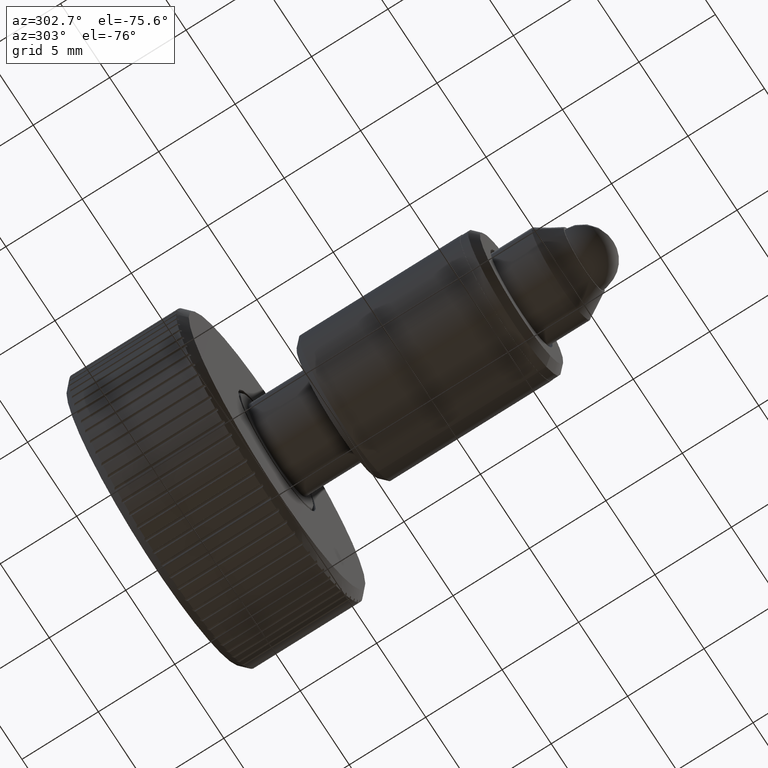
[diagram: clean part render]
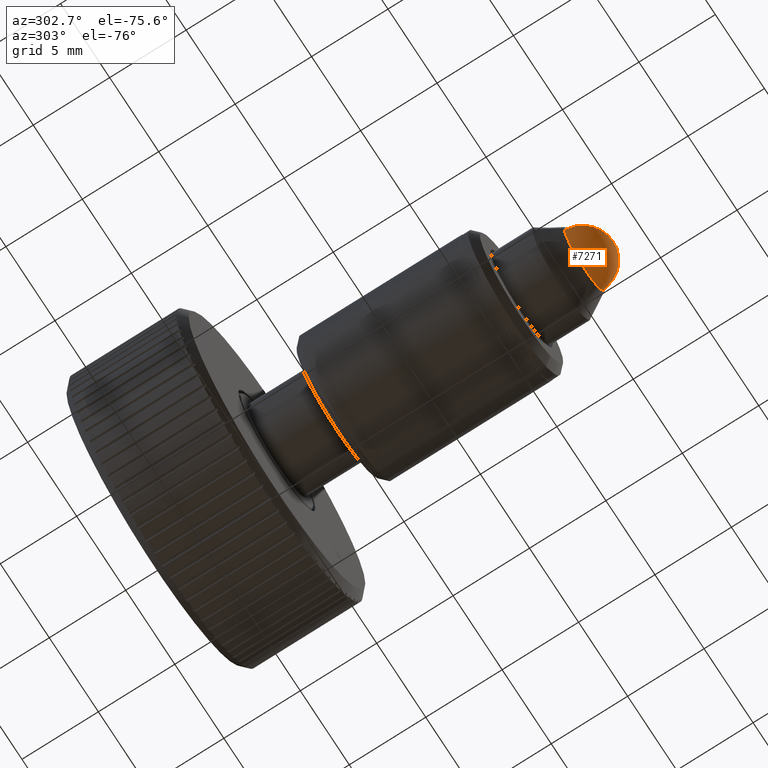
[diagram: same view with one face highlighted and labeled with its STEP entity id]
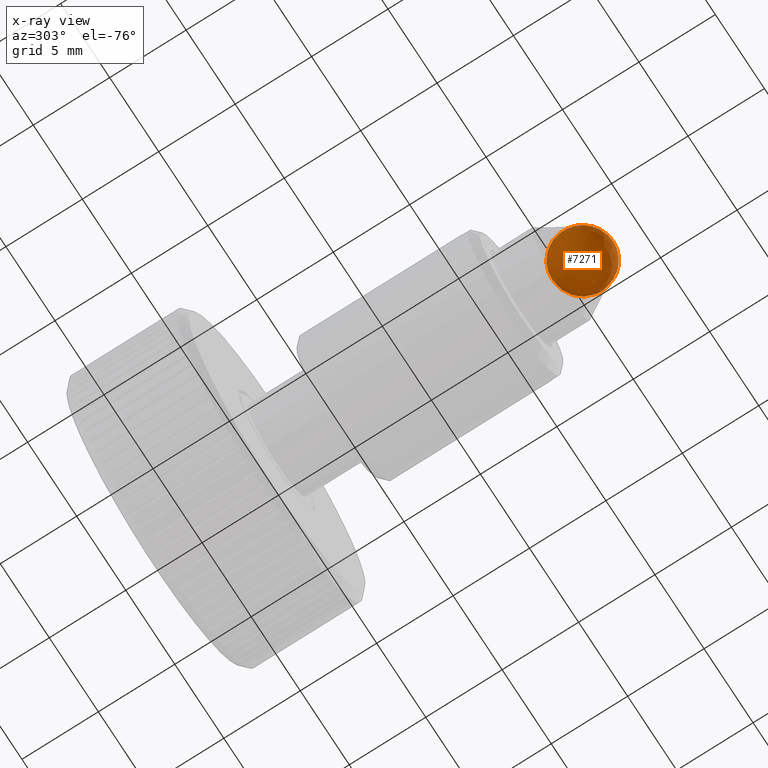
[diagram: x-ray of the same camera — body ghosted, the highlighted face saturated]
A machine part, auxiliary view. The second image highlights one B-rep face of the part: STEP entity #7271.
The next image is the same camera in x-ray: the body ghosted, the highlighted face saturated — about 0% of this face is hidden behind the body in this view.
In plain terms, the highlighted spherical surface has radius 2 mm.
Its self-contained STEP definition (entity closure, byte-faithful):
#36 = VERTEX_POINT ( 'NONE', #1852 ) ;
#85 = DIRECTION ( 'NONE',  ( 0.0000000000000000000, 0.0000000000000000000, 1.000000000000000000 ) ) ;
#710 = CIRCLE ( 'NONE', #4342, 2.000000000000000000 ) ;
#924 = CIRCLE ( 'NONE', #5440, 2.000000000000000000 ) ;
#1852 = CARTESIAN_POINT ( 'NONE',  ( -1.904257985571189600E-016, 2.100000000000029800, -4.667337824838713600E-018 ) ) ;
#2888 = EDGE_LOOP ( 'NONE', ( #5763, #7975 ) ) ;
#3264 = DIRECTION ( 'NONE',  ( 1.224646799147353200E-016, 0.0000000000000000000, -1.000000000000000000 ) ) ;
#3424 = CARTESIAN_POINT ( 'NONE',  ( -3.128904784718542600E-016, 0.1000000000000297600, -4.667337824838713600E-018 ) ) ;
#4342 = AXIS2_PLACEMENT_3D ( 'NONE', #5312, #85, #6183 ) ;
#5214 = DIRECTION ( 'NONE',  ( 1.000000000000000000, 0.0000000000000000000, 0.0000000000000000000 ) ) ;
#5312 = CARTESIAN_POINT ( 'NONE',  ( -3.128904784718542600E-016, 0.1000000000000297600, -4.667337824838713600E-018 ) ) ;
#5440 = AXIS2_PLACEMENT_3D ( 'NONE', #8494, #3264, #9358 ) ;
#5763 = ORIENTED_EDGE ( 'NONE', *, *, #6833, .F. ) ;
#6183 = DIRECTION ( 'NONE',  ( 1.000000000000000000, 0.0000000000000000000, 0.0000000000000000000 ) ) ;
#6657 = AXIS2_PLACEMENT_3D ( 'NONE', #3424, #10437, #5214 ) ;
#6833 = EDGE_CURVE ( 'NONE', #10060, #36, #710, .T. ) ;
#7271 = ADVANCED_FACE ( 'NONE', ( #8720 ), #7915, .T. ) ;
#7633 = CARTESIAN_POINT ( 'NONE',  ( -1.904257985571189600E-016, -1.899999999999970400, -4.667337824838713600E-018 ) ) ;
#7915 = SPHERICAL_SURFACE ( 'NONE', #6657, 2.000000000000000000 ) ;
#7975 = ORIENTED_EDGE ( 'NONE', *, *, #10025, .T. ) ;
#8494 = CARTESIAN_POINT ( 'NONE',  ( -3.128904784718542600E-016, 0.1000000000000297600, -4.667337824838713600E-018 ) ) ;
#8720 = FACE_OUTER_BOUND ( 'NONE', #2888, .T. ) ;
#9358 = DIRECTION ( 'NONE',  ( -1.000000000000000000, 0.0000000000000000000, -1.224646799147353200E-016 ) ) ;
#10025 = EDGE_CURVE ( 'NONE', #10060, #36, #924, .T. ) ;
#10060 = VERTEX_POINT ( 'NONE', #7633 ) ;
#10437 = DIRECTION ( 'NONE',  ( 0.0000000000000000000, 0.0000000000000000000, -1.000000000000000000 ) ) ;